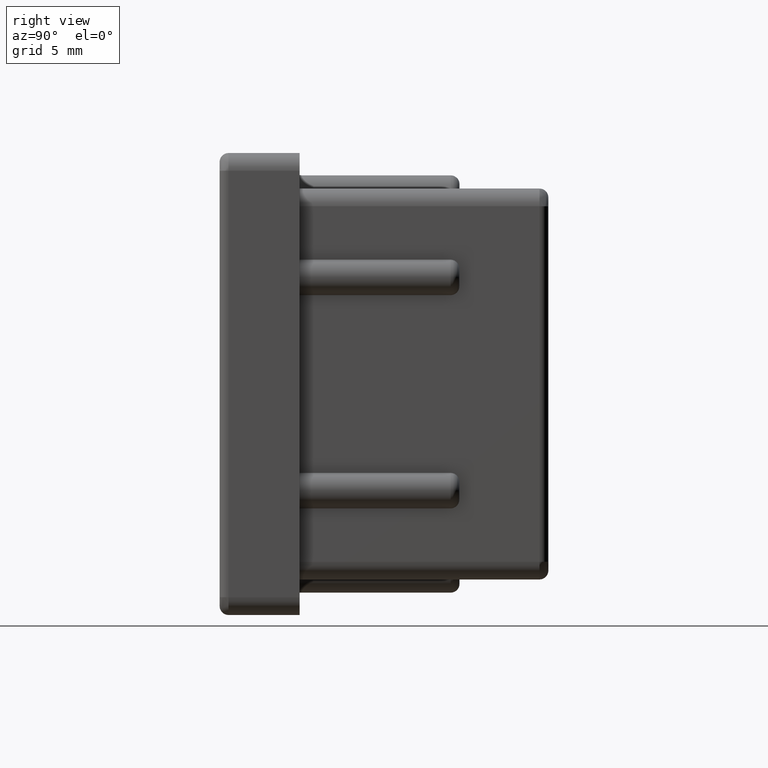
[diagram: clean part render]
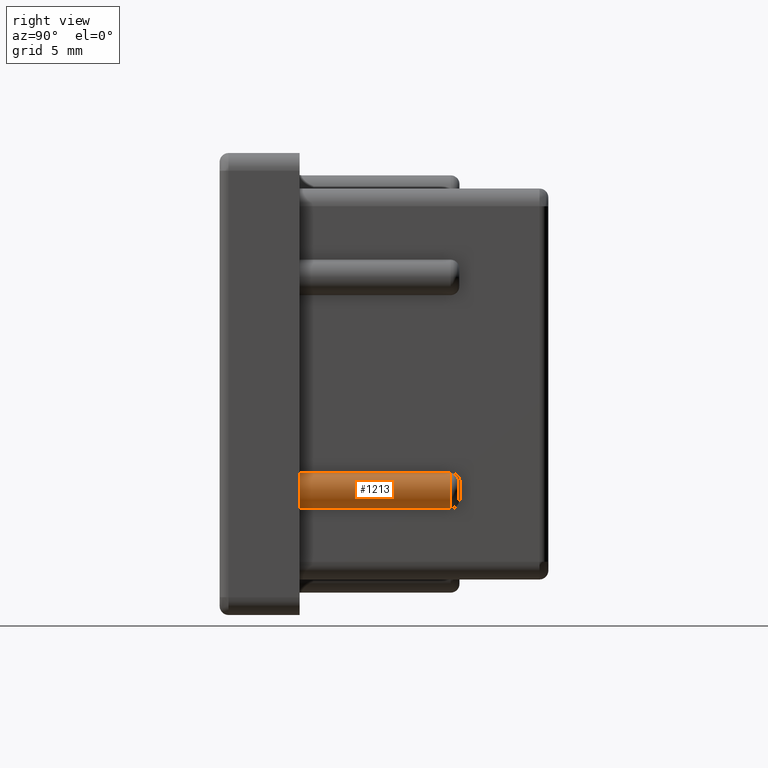
[diagram: same view with one face highlighted and labeled with its STEP entity id]
A machine part, right view. The second image highlights one B-rep face of the part: STEP entity #1213.
In plain terms, the highlighted cylindrical surface (edge-blend (fillet) strip) has radius 1.0417 mm, axis along (0, 1, 0).
Its self-contained STEP definition (entity closure, byte-faithful):
#35=CYLINDRICAL_SURFACE('',#1306,1.04166666666667);
#75=LINE('',#2038,#163);
#76=LINE('',#2041,#164);
#163=VECTOR('',#1499,8.5);
#164=VECTOR('',#1502,8.5);
#284=FACE_OUTER_BOUND('',#358,.T.);
#358=EDGE_LOOP('',(#874,#875,#876,#877));
#438=CIRCLE('',#1298,1.04166666666667);
#442=CIRCLE('',#1307,1.04166666666667);
#544=VERTEX_POINT('',#1973);
#547=VERTEX_POINT('',#1987);
#554=VERTEX_POINT('',#2037);
#555=VERTEX_POINT('',#2039);
#672=EDGE_CURVE('',#547,#544,#438,.T.);
#682=EDGE_CURVE('',#554,#547,#75,.T.);
#683=EDGE_CURVE('',#555,#554,#442,.T.);
#684=EDGE_CURVE('',#544,#555,#76,.T.);
#874=ORIENTED_EDGE('',*,*,#672,.F.);
#875=ORIENTED_EDGE('',*,*,#682,.F.);
#876=ORIENTED_EDGE('',*,*,#683,.F.);
#877=ORIENTED_EDGE('',*,*,#684,.F.);
#1213=ADVANCED_FACE('',(#284),#35,.T.);
#1298=AXIS2_PLACEMENT_3D('',#1998,#1477,#1478);
#1306=AXIS2_PLACEMENT_3D('',#2036,#1497,#1498);
#1307=AXIS2_PLACEMENT_3D('',#2040,#1500,#1501);
#1477=DIRECTION('center_axis',(0.,1.,0.));
#1478=DIRECTION('ref_axis',(1.,0.,0.));
#1497=DIRECTION('center_axis',(0.,1.,0.));
#1498=DIRECTION('ref_axis',(0.279999999999995,0.,0.960000000000001));
#1499=DIRECTION('',(0.,1.,0.));
#1500=DIRECTION('center_axis',(0.,-1.,0.));
#1501=DIRECTION('ref_axis',(0.279999999999995,0.,0.960000000000001));
#1502=DIRECTION('',(0.,-1.,0.));
#1973=CARTESIAN_POINT('',(11.,8.5,-7.00000000000001));
#1987=CARTESIAN_POINT('',(11.,8.5,-5.00000000000001));
#1998=CARTESIAN_POINT('Origin',(10.7083333333333,8.5,-6.00000000000001));
#2036=CARTESIAN_POINT('Origin',(10.7083333333333,0.,-6.00000000000001));
#2037=CARTESIAN_POINT('',(11.,0.,-5.00000000000001));
#2038=CARTESIAN_POINT('',(11.,0.,-5.00000000000001));
#2039=CARTESIAN_POINT('',(11.,0.,-7.00000000000001));
#2040=CARTESIAN_POINT('Origin',(10.7083333333333,0.,-6.00000000000001));
#2041=CARTESIAN_POINT('',(11.,0.,-7.00000000000001));